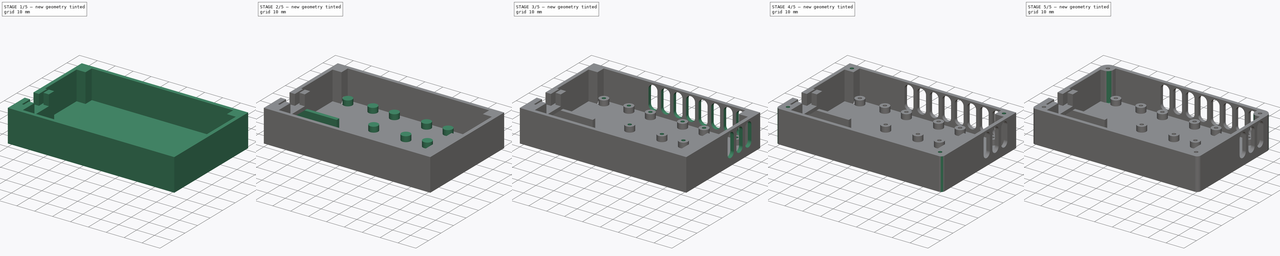
[diagram: build sequence overview — one tinted view per stage of 5, left to right]
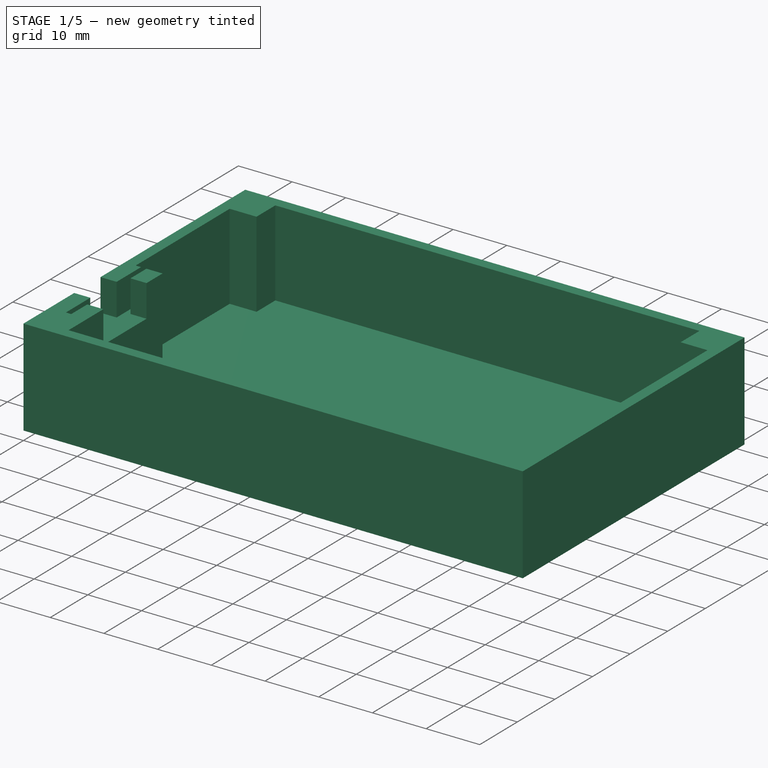
[diagram: stage 1 of 5 — iso view after this stage's code; geometry added in this stage tinted green]
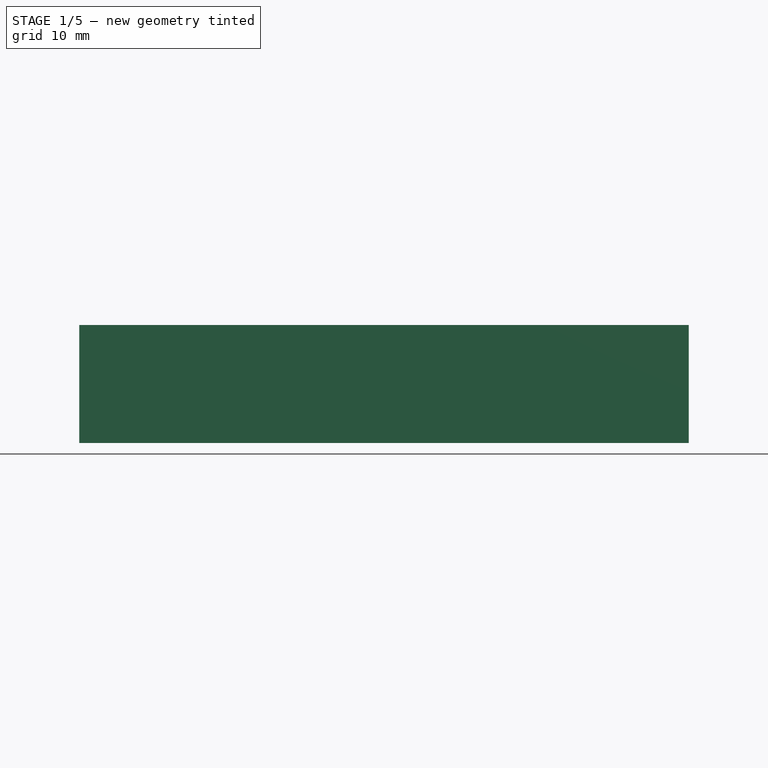
[diagram: stage 1 of 5 — front view after this stage's code; geometry added in this stage tinted green]
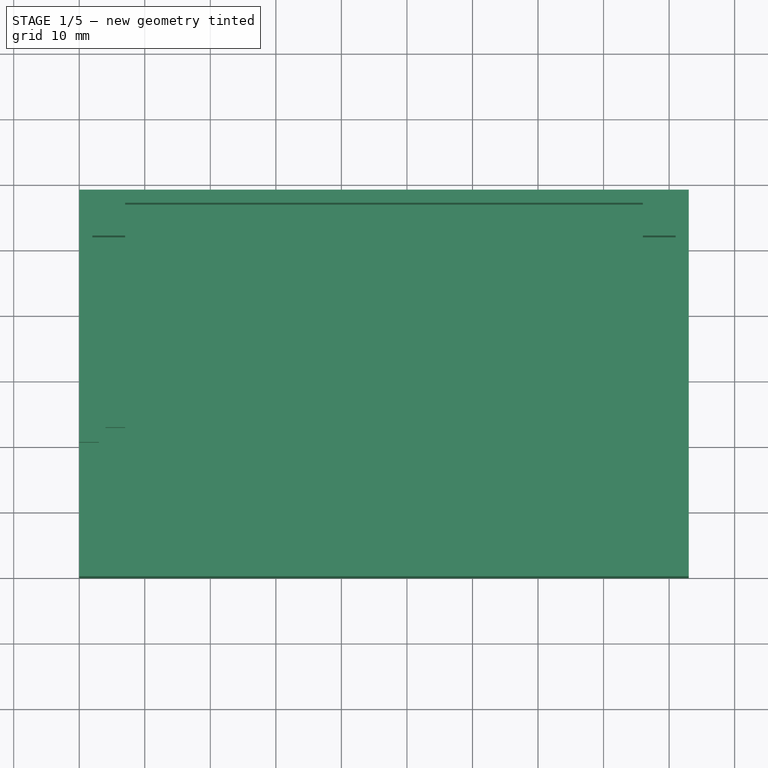
[diagram: stage 1 of 5 — top view after this stage's code; geometry added in this stage tinted green]
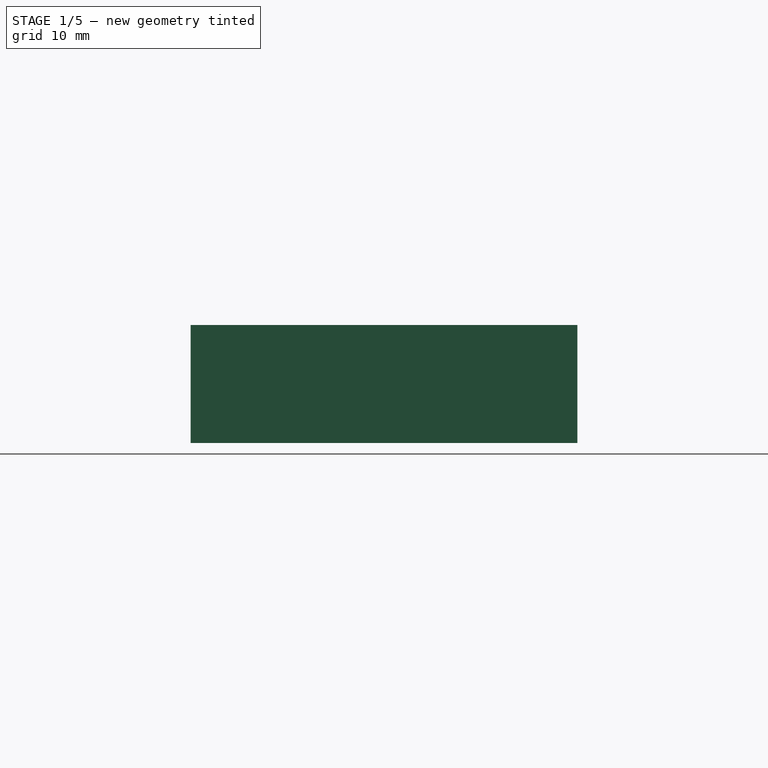
[diagram: stage 1 of 5 — right view after this stage's code; geometry added in this stage tinted green]
FCSTD DOCUMENT  (FreeCAD 1.0R39319 (Git))
Label: box_V1
License: All rights reserved
LicenseURL: https://en.wikipedia.org/wiki/All_rights_reserved
objects: Sketcher::SketchObject×12, PartDesign::Pocket×8, PartDesign::Pad×4, PartDesign::Fillet×4, PartDesign::Body×1
note: 73 computed .brp shape members not serialized (recipe doc carries the construction recipe); baked Part::Feature solids carry a one-line shape summary decoded from their .brp

FEATURE [Sketcher::SketchObject] Sketch
  ArcFitTolerance = 1e-06
  AttachmentSupport = -> [XY_Plane]
  FullyConstrained = true
  MakeInternals = false
  MapMode = 5
  sketch-geometry (5):
    g0: LineSegment StartX=0 StartY=59 StartZ=0 EndX=0 EndY=-7.1e-15 EndZ=0
    g1: LineSegment StartX=0 StartY=-7.1e-15 StartZ=0 EndX=93 EndY=-7.1e-15 EndZ=0
    g2: LineSegment StartX=93 StartY=-7.1e-15 StartZ=0 EndX=93 EndY=59 EndZ=0
    g3: LineSegment StartX=93 StartY=59 StartZ=0 EndX=0 EndY=59 EndZ=0
    g4: GeomPoint X=0 Y=59 Z=0
  constraints (12):
    c: Coincident(g0,g1)
    c: Coincident(g1,g2)
    c: Coincident(g2,g3)
    c: Coincident(g3,g0)
    c: Vertical(g0)
    c: Vertical(g2)
    c: Horizontal(g1)
    c: Horizontal(g3)
    c: Distance(g0,g2) = 93
    c: Distance(g1,g3) = 59
    c: Coincident(g4,g0)
    c: Coincident(g-1,g0)
FEATURE [PartDesign::Pad] Pad
  Direction = (0,0,1)
  Length = 18
  Length2 = 10
  Profile = -> Sketch
  ReferenceAxis = -> Sketch [N_Axis]
  Refine = true
  Suppressed = false
  Type = 0
FEATURE [Sketcher::SketchObject] Sketch001
  ArcFitTolerance = 1e-06
  AttachmentSupport = -> [Pad]
  ExternalGeometry = -> [Pad]
  FullyConstrained = true
  MakeInternals = false
  MapMode = 5
  Placement = pos=(0,0,18) rot=(0,0,1;0rad)
  sketch-geometry (12):
    g0: LineSegment StartX=7 StartY=57 StartZ=0 EndX=86 EndY=57 EndZ=0
    g1: LineSegment StartX=86 StartY=57 StartZ=0 EndX=86 EndY=52 EndZ=0
    g2: LineSegment StartX=86 StartY=52 StartZ=0 EndX=91 EndY=52 EndZ=0
    g3: LineSegment StartX=91 StartY=52 StartZ=0 EndX=91 EndY=27 EndZ=0
    g4: LineSegment StartX=91 StartY=27 StartZ=0 EndX=86 EndY=27 EndZ=0
    g5: LineSegment StartX=86 StartY=27 StartZ=0 EndX=86 EndY=2 EndZ=0
    g6: LineSegment StartX=86 StartY=2 StartZ=0 EndX=7 EndY=2 EndZ=0
    g7: LineSegment StartX=7 StartY=2 StartZ=0 EndX=7 EndY=27 EndZ=0
    g8: LineSegment StartX=7 StartY=27 StartZ=0 EndX=2 EndY=27 EndZ=0
    g9: LineSegment StartX=2 StartY=27 StartZ=0 EndX=2 EndY=52 EndZ=0
    g10: LineSegment StartX=2 StartY=52 StartZ=0 EndX=7 EndY=52 EndZ=0
    g11: LineSegment StartX=7 StartY=52 StartZ=0 EndX=7 EndY=57 EndZ=0
  constraints (36):
    c: Horizontal(g0)
    c: Coincident(g0,g1)
    c: Vertical(g1)
    c: Coincident(g1,g2)
    c: Horizontal(g2)
    c: Coincident(g2,g3)
    c: Vertical(g3)
    c: Coincident(g3,g4)
    c: Horizontal(g4)
    c: Coincident(g4,g5)
    c: Coincident(g7,g8)
    c: Coincident(g8,g9)
    c: Coincident(g9,g10)
    c: Coincident(g10,g11)
    c: Coincident(g11,g0)
    c: Vertical(g11)
    c: Horizontal(g10)
    c: Vertical(g9)
    c: Horizontal(g8)
    c: Vertical(g7)
    c: Horizontal(g6)
    c: Vertical(g5)
    c: Coincident(g5,g6)
    c: Coincident(g6,g7)
    c: Distance(g-1,g6) = 2
    c: Distance(g-2,g9) = 2
    c: Distance(g-3,g3) = 2
    c: Distance(g-4,g0) = 2
    c: Distance(g10,g0) = 5
    c: Distance(g11,g9) = 5
    c: Equal(g11,g1)
    c: Equal(g10,g2)
    c: Equal(g2,g4)
    c: Equal(g10,g8)
    c: Distance(g6,g8) = 25
    c: Equal(g7,g5)
FEATURE [PartDesign::Pocket] Pocket
  BaseFeature = -> Pad
  Direction = (0,0,-1)
  Length = 16
  Length2 = 5
  Profile = -> Sketch001
  ReferenceAxis = -> Sketch001 [N_Axis]
  Refine = true
  Suppressed = false
  Type = 0
FEATURE [Sketcher::SketchObject] Sketch002
  ArcFitTolerance = 1e-06
  AttachmentSupport = -> [Pocket]
  FullyConstrained = true
  MakeInternals = false
  MapMode = 5
  Placement = pos=(0,0,18) rot=(0,0,1;0rad)
  sketch-geometry (12):
    g0: LineSegment StartX=0 StartY=20.5 StartZ=0 EndX=3 EndY=20.5 EndZ=0
    g1: LineSegment StartX=3 StartY=20.5 StartZ=0 EndX=3 EndY=27 EndZ=0
    g2: LineSegment StartX=3 StartY=27 StartZ=0 EndX=4 EndY=27 EndZ=0
    g3: LineSegment StartX=4 StartY=27 StartZ=0 EndX=4 EndY=22.75 EndZ=0
    g4: LineSegment StartX=4 StartY=22.75 StartZ=0 EndX=7 EndY=22.75 EndZ=0
    g5: LineSegment StartX=7 StartY=22.75 StartZ=0 EndX=7 EndY=11.25 EndZ=0
    g6: LineSegment StartX=7 StartY=11.25 StartZ=0 EndX=4 EndY=11.25 EndZ=0
    g7: LineSegment StartX=4 StartY=11.25 StartZ=0 EndX=4 EndY=7 EndZ=0
    g8: LineSegment StartX=4 StartY=7 StartZ=0 EndX=3 EndY=7 EndZ=0
    g9: LineSegment StartX=3 StartY=7 StartZ=0 EndX=3 EndY=13.5 EndZ=0
    g10: LineSegment StartX=3 StartY=13.5 StartZ=0 EndX=0 EndY=13.5 EndZ=0
    g11: LineSegment StartX=0 StartY=13.5 StartZ=0 EndX=0 EndY=20.5 EndZ=0
  constraints (36):
    c: Horizontal(g0)
    c: Coincident(g0,g1)
    c: Vertical(g1)
    c: Coincident(g1,g2)
    c: Coincident(g2,g3)
    c: Vertical(g3)
    c: Coincident(g3,g4)
    c: Coincident(g4,g5)
    c: Vertical(g5)
    c: Coincident(g5,g6)
    c: Horizontal(g6)
    c: Coincident(g6,g7)
    c: Vertical(g7)
    c: Coincident(g7,g8)
    c: Coincident(g8,g9)
    c: Vertical(g9)
    c: Coincident(g9,g10)
    c: Horizontal(g10)
    c: Coincident(g10,g11)
    c: Coincident(g11,g0)
    c: Vertical(g11)
    c: Horizontal(g4)
    c: Horizontal(g2)
    c: Horizontal(g8)
    c: Distance(g8,g2) = 20
    c: Distance(g6,g4) = 11.5
    c: Distance(g5,g9) = 4
    c: Equal(g9,g1)
    c: Equal(g3,g7)
    c: Equal(g4,g6)
    c: Equal(g2,g8)
    c: Distance(g7,g9) = 1
    c: Distance(g10,g0) = 7
    c: Distance(g9,g11) = 3
    c: PointOnObject(g10,g-2)
    c: Distance(g8,g-1) = 7
FEATURE [PartDesign::Pocket] Pocket001
  BaseFeature = -> Pocket
  Direction = (0,0,-1)
  Length = 6
  Length2 = 5
  Profile = -> Sketch002
  ReferenceAxis = -> Sketch002 [N_Axis]
  Refine = true
  Suppressed = false
  Type = 0
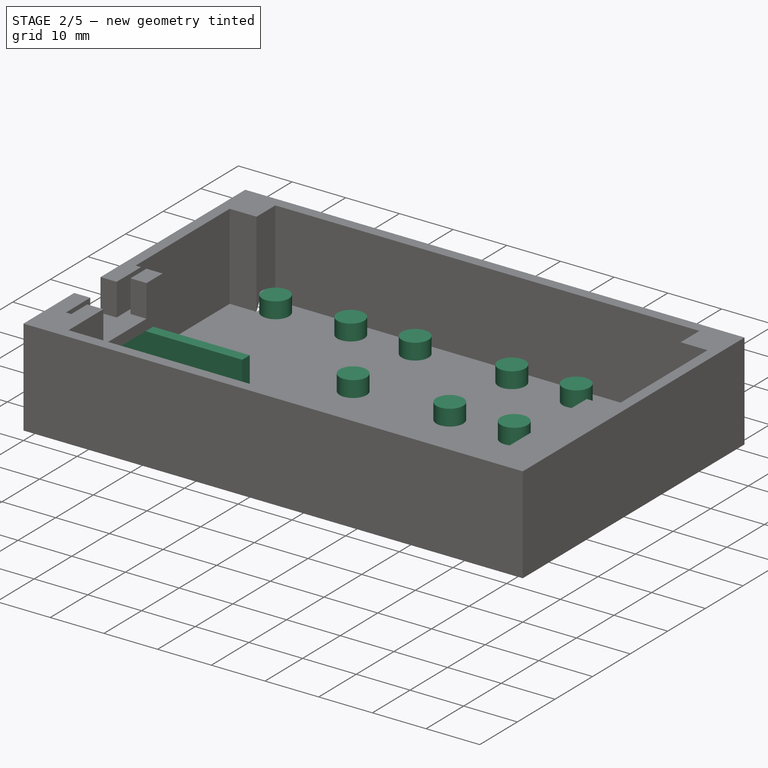
[diagram: stage 2 of 5 — iso view after this stage's code; geometry added in this stage tinted green]
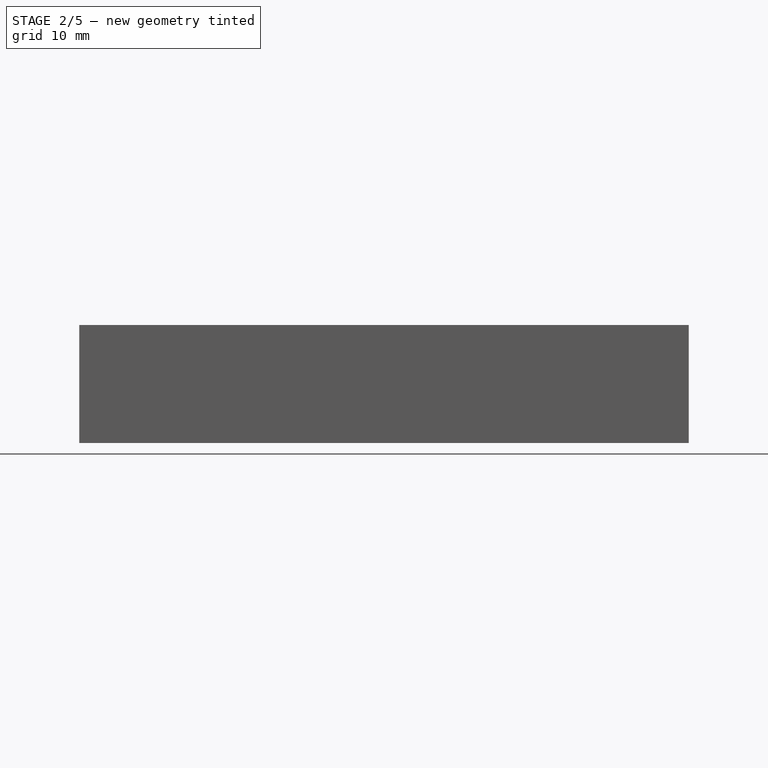
[diagram: stage 2 of 5 — front view after this stage's code; geometry added in this stage tinted green]
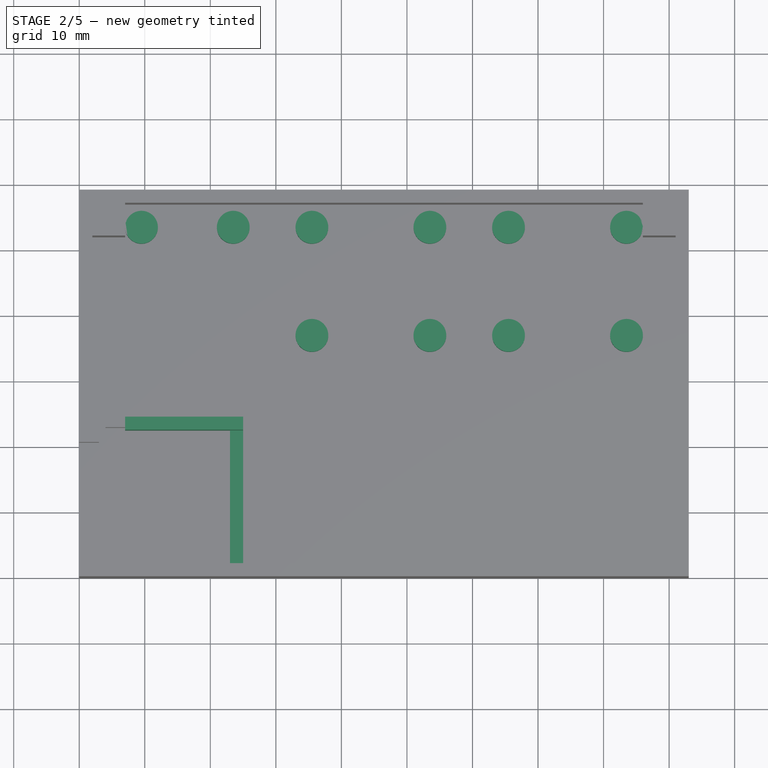
[diagram: stage 2 of 5 — top view after this stage's code; geometry added in this stage tinted green]
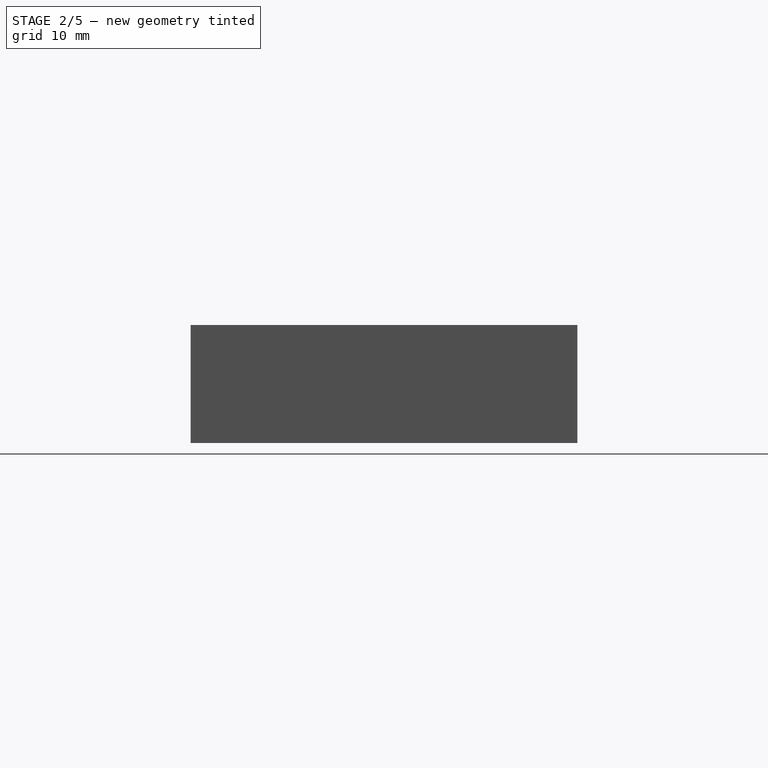
[diagram: stage 2 of 5 — right view after this stage's code; geometry added in this stage tinted green]
FEATURE [Sketcher::SketchObject] Sketch003
  ArcFitTolerance = 1e-06
  AttachmentSupport = -> [Pocket001]
  ExternalGeometry = -> [Pocket001]
  FullyConstrained = true
  MakeInternals = false
  MapMode = 5
  Placement = pos=(7,0,0) rot=(0.57735,0.57735,0.57735;2.0944rad)
  sketch-geometry (4):
    g0: LineSegment StartX=2 StartY=10 StartZ=0 EndX=2 EndY=2 EndZ=0
    g1: LineSegment StartX=2 StartY=2 StartZ=0 EndX=27 EndY=2 EndZ=0
    g2: LineSegment StartX=27 StartY=2 StartZ=0 EndX=27 EndY=10 EndZ=0
    g3: LineSegment StartX=27 StartY=10 StartZ=0 EndX=2 EndY=10 EndZ=0
  constraints (11):
    c: Coincident(g0,g1)
    c: Coincident(g1,g2)
    c: Coincident(g2,g3)
    c: Coincident(g3,g0)
    c: Vertical(g0)
    c: Vertical(g2)
    c: Horizontal(g1)
    c: Horizontal(g3)
    c: Distance(g0,g2) = 25
    c: Distance(g1,g3) = 8
    c: Coincident(g-4,g0)
FEATURE [PartDesign::Pocket] Pocket002
  BaseFeature = -> Pocket001
  Direction = (-1,0,0)
  Length = 5
  Length2 = 5
  Profile = -> Sketch003
  ReferenceAxis = -> Sketch003 [N_Axis]
  Refine = true
  Suppressed = false
  Type = 0
FEATURE [Sketcher::SketchObject] Sketch004
  ArcFitTolerance = 1e-06
  AttachmentSupport = -> [Pocket002]
  ExternalGeometry = -> [Pocket002]
  FullyConstrained = true
  MakeInternals = false
  MapMode = 5
  Placement = pos=(0,0,2) rot=(0,0,1;0rad)
  sketch-geometry (14):
    g0: Circle CenterX=23.5 CenterY=53.5 CenterZ=0 NormalX=0 NormalY=0 NormalZ=1 AngleXU=0 Radius=2.5
    g1: Circle CenterX=35.5 CenterY=53.5 CenterZ=0 NormalX=0 NormalY=0 NormalZ=1 AngleXU=0 Radius=2.5
    g2: Circle CenterX=53.5 CenterY=53.5 CenterZ=0 NormalX=0 NormalY=0 NormalZ=1 AngleXU=0 Radius=2.5
    g3: Circle CenterX=53.5 CenterY=37 CenterZ=0 NormalX=0 NormalY=0 NormalZ=1 AngleXU=0 Radius=2.5
    g4: Circle CenterX=35.5 CenterY=37 CenterZ=0 NormalX=0 NormalY=0 NormalZ=1 AngleXU=0 Radius=2.5
    g5: Circle CenterX=65.5 CenterY=53.5 CenterZ=0 NormalX=0 NormalY=0 NormalZ=1 AngleXU=0 Radius=2.5
    g6: Circle CenterX=83.5 CenterY=53.5 CenterZ=0 NormalX=0 NormalY=0 NormalZ=1 AngleXU=0 Radius=2.5
    g7: Circle CenterX=83.5 CenterY=37 CenterZ=0 NormalX=0 NormalY=0 NormalZ=1 AngleXU=0 Radius=2.5
    g8: Circle CenterX=65.5 CenterY=37 CenterZ=0 NormalX=0 NormalY=0 NormalZ=1 AngleXU=0 Radius=2.5
    g9: Circle CenterX=9.5 CenterY=53.5 CenterZ=0 NormalX=0 NormalY=0 NormalZ=1 AngleXU=0 Radius=2.5
    g10: LineSegment StartX=23 StartY=22.5 StartZ=0 EndX=23 EndY=2 EndZ=0
    g11: LineSegment StartX=23 StartY=2 StartZ=0 EndX=25 EndY=2 EndZ=0
    g12: LineSegment StartX=25 StartY=2 StartZ=0 EndX=25 EndY=22.5 EndZ=0
    g13: LineSegment StartX=25 StartY=22.5 StartZ=0 EndX=23 EndY=22.5 EndZ=0
  constraints (42):
    c: Diameter(g0) = 5
    c: Diameter(g1) = 5
    c: Diameter(g2) = 5
    c: Diameter(g3) = 5
    c: Diameter(g4) = 5
    c: Diameter(g5) = 5
    c: Diameter(g6) = 5
    c: Diameter(g7) = 5
    c: Diameter(g8) = 5
    c: Diameter(g9) = 5
    c: Coincident(g10,g11)
    c: Coincident(g11,g12)
    c: Coincident(g12,g13)
    c: Coincident(g13,g10)
    c: Vertical(g10)
    c: Vertical(g12)
    c: Horizontal(g11)
    c: Horizontal(g13)
    c: Distance(g10,g12) = 2
    c: Distance(g11,g13) = 20.5
    c: Distance(g-1,g11) = 2
    c: Distance(g-2,g10) = 23
    c: Distance(g9,g-2) = 9.5
    c: Distance(g9,g-5) = 5.5
    c: Distance(g0,g-5) = 5.5
    c: Distance(g1,g-5) = 5.5
    c: Distance(g2,g-5) = 5.5
    c: Distance(g5,g-5) = 5.5
    c: Distance(g6,g-5) = 5.5
    c: DistanceX(g9,g0) = 14
    c: DistanceY(g4,g1) = 16.5
    c: DistanceY(g3,g2) = 16.5
    c: DistanceY(g8,g5) = 16.5
    c: DistanceY(g7,g6) = 16.5
    c: DistanceX(g1,g2) = 18
    c: DistanceX(g4,g3) = 18
    c: DistanceX(g1,g4) = 0
    c: DistanceX(g5,g6) = 18
    c: DistanceX(g5,g8) = 0
    c: DistanceX(g8,g7) = 18
    c: DistanceX(g2,g5) = 12
    c: DistanceX(g6,g-5) = 9.5
FEATURE [PartDesign::Pad] Pad001
  BaseFeature = -> Pocket002
  Direction = (0,0,1)
  Length = 3
  Length2 = 10
  Profile = -> Sketch004
  ReferenceAxis = -> Sketch004 [N_Axis]
  Refine = true
  Suppressed = false
  Type = 0
FEATURE [Sketcher::SketchObject] Sketch005
  ArcFitTolerance = 1e-06
  AttachmentSupport = -> [Pad001]
  FullyConstrained = true
  MakeInternals = false
  MapMode = 5
  Placement = pos=(0,0,2) rot=(0,0,1;0rad)
  sketch-geometry (4):
    g0: LineSegment StartX=2 StartY=24.5 StartZ=0 EndX=2 EndY=22.5 EndZ=0
    g1: LineSegment StartX=2 StartY=22.5 StartZ=0 EndX=25 EndY=22.5 EndZ=0
    g2: LineSegment StartX=25 StartY=22.5 StartZ=0 EndX=25 EndY=24.5 EndZ=0
    g3: LineSegment StartX=25 StartY=24.5 StartZ=0 EndX=2 EndY=24.5 EndZ=0
  constraints (12):
    c: Coincident(g0,g1)
    c: Coincident(g1,g2)
    c: Coincident(g2,g3)
    c: Coincident(g3,g0)
    c: Vertical(g0)
    c: Vertical(g2)
    c: Horizontal(g1)
    c: Horizontal(g3)
    c: Distance(g0,g2) = 23
    c: Distance(g1,g3) = 2
    c: Distance(g-1,g1) = 22.5
    c: Distance(g0,g-2) = 2
FEATURE [PartDesign::Pad] Pad002
  BaseFeature = -> Pad001
  Direction = (0,0,1)
  Length = 8
  Length2 = 10
  Profile = -> Sketch005
  ReferenceAxis = -> Sketch005 [N_Axis]
  Refine = true
  Suppressed = false
  Type = 0
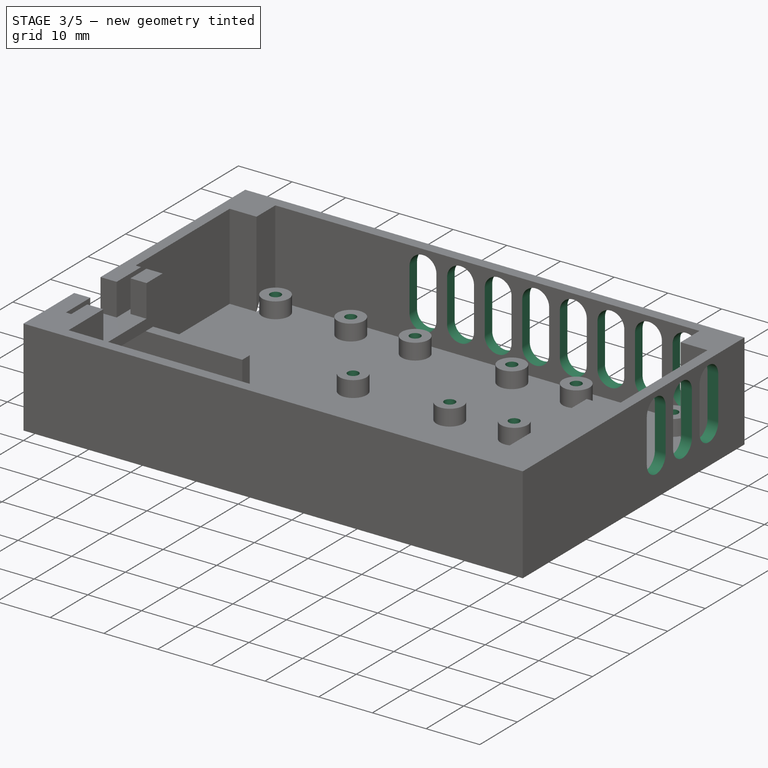
[diagram: stage 3 of 5 — iso view after this stage's code; geometry added in this stage tinted green]
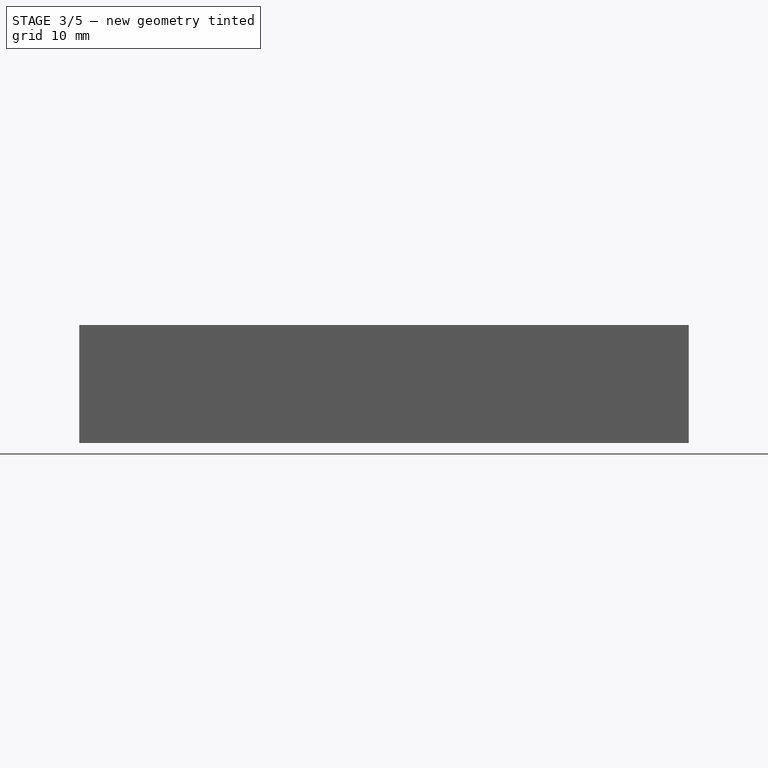
[diagram: stage 3 of 5 — front view after this stage's code; geometry added in this stage tinted green]
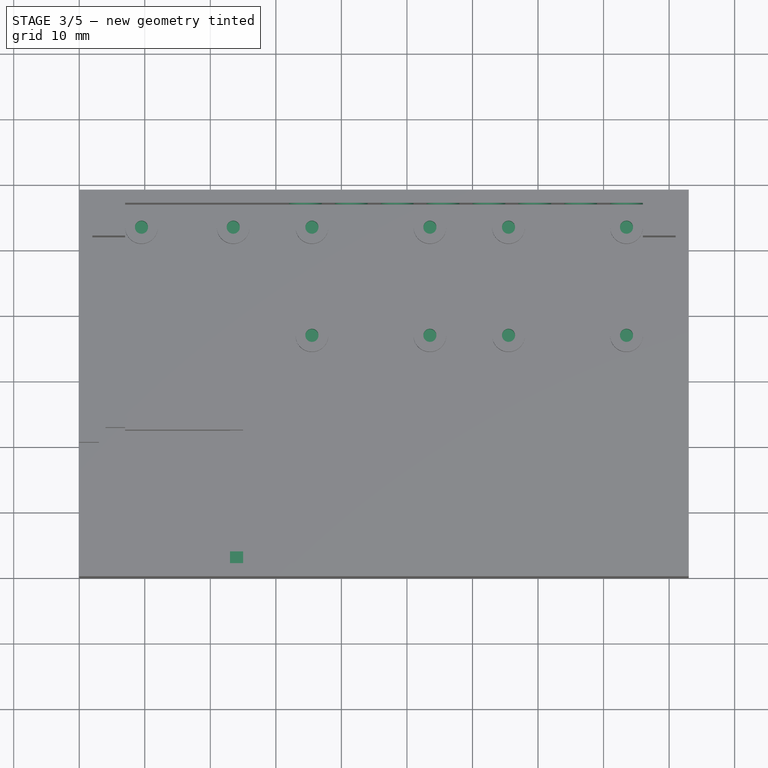
[diagram: stage 3 of 5 — top view after this stage's code; geometry added in this stage tinted green]
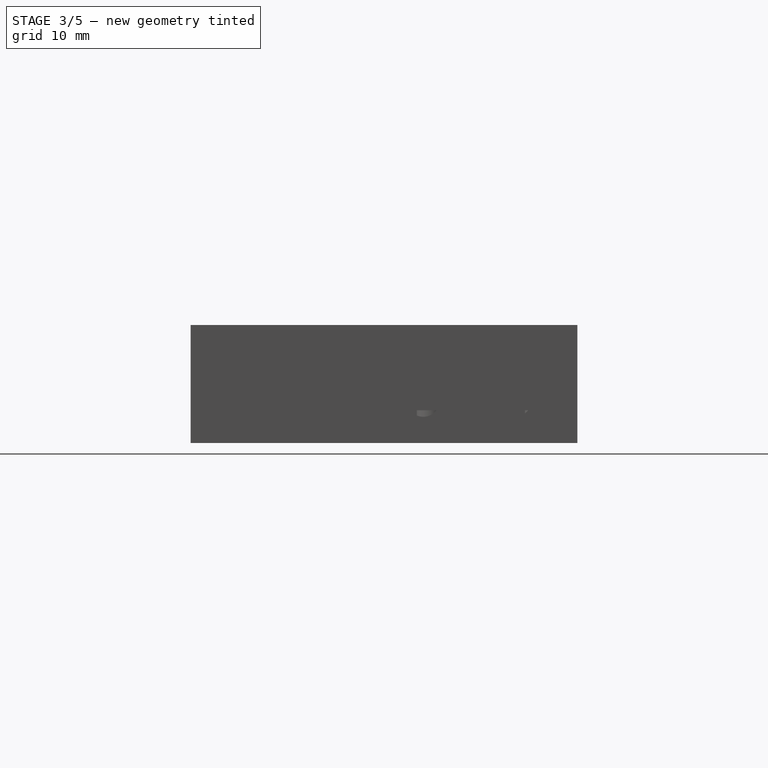
[diagram: stage 3 of 5 — right view after this stage's code; geometry added in this stage tinted green]
FEATURE [Sketcher::SketchObject] Sketch006
  ArcFitTolerance = 1e-06
  AttachmentSupport = -> [Pad002]
  ExternalGeometry = -> [Pad002]
  FullyConstrained = true
  MakeInternals = false
  MapMode = 5
  Placement = pos=(0,0,5) rot=(0,0,1;0rad)
  sketch-geometry (4):
    g0: LineSegment StartX=23 StartY=4 StartZ=0 EndX=23 EndY=2 EndZ=0
    g1: LineSegment StartX=23 StartY=2 StartZ=0 EndX=25 EndY=2 EndZ=0
    g2: LineSegment StartX=25 StartY=2 StartZ=0 EndX=25 EndY=4 EndZ=0
    g3: LineSegment StartX=25 StartY=4 StartZ=0 EndX=23 EndY=4 EndZ=0
  constraints (12):
    c: Coincident(g0,g1)
    c: Coincident(g1,g2)
    c: Coincident(g2,g3)
    c: Coincident(g3,g0)
    c: Vertical(g0)
    c: Vertical(g2)
    c: Horizontal(g1)
    c: Horizontal(g3)
    c: Distance(g0,g2) = 2
    c: Distance(g1,g3) = 2
    c: Distance(g-1,g1) = 2
    c: Distance(g-2,g0) = 23
FEATURE [PartDesign::Pad] Pad003
  BaseFeature = -> Pad002
  Direction = (0,0,1)
  Length = 2
  Length2 = 10
  Profile = -> Sketch006
  ReferenceAxis = -> Sketch006 [N_Axis]
  Refine = true
  Suppressed = false
  Type = 0
FEATURE [Sketcher::SketchObject] Sketch007
  ArcFitTolerance = 1e-06
  AttachmentSupport = -> [Pad003]
  ExternalGeometry = -> [Pad003]
  FullyConstrained = true
  MakeInternals = false
  MapMode = 5
  Placement = pos=(0,0,5) rot=(0,0,1;0rad)
  sketch-geometry (10):
    g0: Circle CenterX=23.5 CenterY=53.5 CenterZ=0 NormalX=0 NormalY=0 NormalZ=1 AngleXU=0 Radius=1
    g1: Circle CenterX=35.5 CenterY=53.5 CenterZ=0 NormalX=0 NormalY=0 NormalZ=1 AngleXU=0 Radius=1
    g2: Circle CenterX=9.5 CenterY=53.5 CenterZ=0 NormalX=0 NormalY=0 NormalZ=1 AngleXU=0 Radius=1
    g3: Circle CenterX=53.5 CenterY=53.5 CenterZ=0 NormalX=0 NormalY=0 NormalZ=1 AngleXU=0 Radius=1
    g4: Circle CenterX=65.5 CenterY=53.5 CenterZ=0 NormalX=0 NormalY=0 NormalZ=1 AngleXU=0 Radius=1
    g5: Circle CenterX=83.5 CenterY=53.5 CenterZ=0 NormalX=0 NormalY=0 NormalZ=1 AngleXU=0 Radius=1
    g6: Circle CenterX=35.5 CenterY=37 CenterZ=0 NormalX=0 NormalY=0 NormalZ=1 AngleXU=0 Radius=1
    g7: Circle CenterX=53.5 CenterY=37 CenterZ=0 NormalX=0 NormalY=0 NormalZ=1 AngleXU=0 Radius=1
    g8: Circle CenterX=65.5 CenterY=37 CenterZ=0 NormalX=0 NormalY=0 NormalZ=1 AngleXU=0 Radius=1
    g9: Circle CenterX=83.5 CenterY=37 CenterZ=0 NormalX=0 NormalY=0 NormalZ=1 AngleXU=0 Radius=1
  constraints (20):
    c: Diameter(g0) = 2
    c: Diameter(g1) = 2
    c: Diameter(g2) = 2
    c: Diameter(g3) = 2
    c: Diameter(g4) = 2
    c: Diameter(g5) = 2
    c: Diameter(g6) = 2
    c: Diameter(g7) = 2
    c: Diameter(g8) = 2
    c: Diameter(g9) = 2
    c: Coincident(g2,g-3)
    c: Coincident(g0,g-4)
    c: Coincident(g1,g-5)
    c: Coincident(g3,g-8)
    c: Coincident(g-9,g4)
    c: Coincident(g5,g-12)
    c: Coincident(g-11,g9)
    c: Coincident(g8,g-10)
    c: Coincident(g7,g-7)
    c: Coincident(g6,g-6)
FEATURE [PartDesign::Pocket] Pocket003
  BaseFeature = -> Pad003
  Direction = (0,0,-1)
  Length = 4
  Length2 = 5
  Profile = -> Sketch007
  ReferenceAxis = -> Sketch007 [N_Axis]
  Refine = true
  Suppressed = false
  Type = 0
FEATURE [Sketcher::SketchObject] Sketch008
  ArcFitTolerance = 1e-06
  AttachmentSupport = -> [Pocket003]
  ExternalGeometry = -> [Pocket003]
  FullyConstrained = true
  MakeInternals = false
  MapMode = 5
  Placement = pos=(0,59,0) rot=(0,0.707107,0.707107;3.14159rad)
  sketch-geometry (32):
    g0: ArcOfCircle CenterX=-76.5 CenterY=6.5 CenterZ=0 NormalX=0 NormalY=0 NormalZ=1 AngleXU=0 Radius=2.5 StartAngle=3.14159 EndAngle=6.28319
    g1: ArcOfCircle CenterX=-76.5 CenterY=14.5 CenterZ=0 NormalX=0 NormalY=0 NormalZ=1 AngleXU=0 Radius=2.5 StartAngle=2e-16 EndAngle=3.14159
    g2: LineSegment StartX=-79 StartY=6.5 StartZ=0 EndX=-79 EndY=14.5 EndZ=0
    g3: LineSegment StartX=-74 StartY=6.5 StartZ=0 EndX=-74 EndY=14.5 EndZ=0
    g4: ArcOfCircle CenterX=-69.5 CenterY=6.5 CenterZ=0 NormalX=0 NormalY=0 NormalZ=1 AngleXU=0 Radius=2.5 StartAngle=3.14159 EndAngle=6.28319
    g5: ArcOfCircle CenterX=-69.5 CenterY=14.5 CenterZ=0 NormalX=0 NormalY=0 NormalZ=1 AngleXU=0 Radius=2.5 StartAngle=1e-16 EndAngle=3.14159
    g6: LineSegment StartX=-72 StartY=6.5 StartZ=0 EndX=-72 EndY=14.5 EndZ=0
    g7: LineSegment StartX=-67 StartY=6.5 StartZ=0 EndX=-67 EndY=14.5 EndZ=0
    g8: ArcOfCircle CenterX=-62.5 CenterY=6.5 CenterZ=0 NormalX=0 NormalY=0 NormalZ=1 AngleXU=0 Radius=2.5 StartAngle=3.14159 EndAngle=6.28319
    g9: ArcOfCircle CenterX=-62.5 CenterY=14.5 CenterZ=0 NormalX=0 NormalY=0 NormalZ=1 AngleXU=0 Radius=2.5 StartAngle=3e-16 EndAngle=3.14159
    g10: LineSegment StartX=-65 StartY=6.5 StartZ=0 EndX=-65 EndY=14.5 EndZ=0
    g11: LineSegment StartX=-60 StartY=6.5 StartZ=0 EndX=-60 EndY=14.5 EndZ=0
    g12: ArcOfCircle CenterX=-55.5 CenterY=6.5 CenterZ=0 NormalX=0 NormalY=0 NormalZ=1 AngleXU=0 Radius=2.5 StartAngle=3.14159 EndAngle=6.28319
    g13: ArcOfCircle CenterX=-55.5 CenterY=14.5 CenterZ=0 NormalX=0 NormalY=0 NormalZ=1 AngleXU=0 Radius=2.5 StartAngle=0 EndAngle=3.14159
    g14: LineSegment StartX=-58 StartY=6.5 StartZ=0 EndX=-58 EndY=14.5 EndZ=0
    g15: LineSegment StartX=-53 StartY=6.5 StartZ=0 EndX=-53 EndY=14.5 EndZ=0
    g16: ArcOfCircle CenterX=-48.5 CenterY=6.5 CenterZ=0 NormalX=0 NormalY=0 NormalZ=1 AngleXU=0 Radius=2.5 StartAngle=3.14159 EndAngle=6.28319
    g17: ArcOfCircle CenterX=-48.5 CenterY=14.5 CenterZ=0 NormalX=0 NormalY=0 NormalZ=1 AngleXU=0 Radius=2.5 StartAngle=2e-16 EndAngle=3.14159
    g18: LineSegment StartX=-51 StartY=6.5 StartZ=0 EndX=-51 EndY=14.5 EndZ=0
    g19: LineSegment StartX=-46 StartY=6.5 StartZ=0 EndX=-46 EndY=14.5 EndZ=0
    g20: ArcOfCircle CenterX=-41.5 CenterY=6.5 CenterZ=0 NormalX=0 NormalY=0 NormalZ=1 AngleXU=0 Radius=2.5 StartAngle=3.14159 EndAngle=6.28319
    g21: ArcOfCircle CenterX=-41.5 CenterY=14.5 CenterZ=0 NormalX=0 NormalY=0 NormalZ=1 AngleXU=0 Radius=2.5 StartAngle=1.02e-13 EndAngle=3.14159
    g22: LineSegment StartX=-44 StartY=6.5 StartZ=0 EndX=-44 EndY=14.5 EndZ=0
    g23: LineSegment StartX=-39 StartY=6.5 StartZ=0 EndX=-39 EndY=14.5 EndZ=0
    g24: ArcOfCircle CenterX=-34.5 CenterY=6.5 CenterZ=0 NormalX=0 NormalY=0 NormalZ=1 AngleXU=0 Radius=2.5 StartAngle=3.14159 EndAngle=6.28319
    g25: ArcOfCircle CenterX=-34.5 CenterY=14.5 CenterZ=0 NormalX=0 NormalY=0 NormalZ=1 AngleXU=0 Radius=2.5 StartAngle=-2.04e-14 EndAngle=3.14159
    g26: LineSegment StartX=-37 StartY=6.5 StartZ=0 EndX=-37 EndY=14.5 EndZ=0
    g27: LineSegment StartX=-32 StartY=6.5 StartZ=0 EndX=-32 EndY=14.5 EndZ=0
    g28: ArcOfCircle CenterX=-83.5 CenterY=6.5 CenterZ=0 NormalX=0 NormalY=0 NormalZ=1 AngleXU=0 Radius=2.5 StartAngle=3.14159 EndAngle=6.28319
    g29: ArcOfCircle CenterX=-83.5 CenterY=14.5 CenterZ=0 NormalX=0 NormalY=0 NormalZ=1 AngleXU=0 Radius=2.5 StartAngle=0 EndAngle=3.14159
    g30: LineSegment StartX=-86 StartY=6.5 StartZ=0 EndX=-86 EndY=14.5 EndZ=0
    g31: LineSegment StartX=-81 StartY=6.5 StartZ=0 EndX=-81 EndY=14.5 EndZ=0
  constraints (80):
    c: Tangent(g0,g2) = 1.5708
    c: Tangent(g0,g3) = -1.5708
    c: Tangent(g1,g2) = 1.5708
    c: Tangent(g1,g3) = -1.5708
    c: Equal(g0,g1)
    c: Vertical(g3)
    c: Distance(g0,g1) = 8
    c: Radius(g0) = 2.5
    c: Distance(g0,g-1) = 6.5
    c: Tangent(g4,g6) = 1.5708
    c: Tangent(g4,g7) = -1.5708
    c: Tangent(g5,g6) = 1.5708
    c: Tangent(g5,g7) = -1.5708
    c: Equal(g4,g5)
    c: Vertical(g7)
    c: Distance(g4,g5) = 8
    c: Radius(g4) = 2.5
    c: Distance(g4,g-1) = 6.5
    c: Tangent(g8,g10) = 1.5708
    c: Tangent(g8,g11) = -1.5708
    c: Tangent(g9,g10) = 1.5708
    c: Tangent(g9,g11) = -1.5708
    c: Equal(g8,g9)
    c: Vertical(g11)
    c: Distance(g8,g9) = 8
    c: Radius(g8) = 2.5
    c: Distance(g8,g-1) = 6.5
    c: Tangent(g12,g14) = 1.5708
    c: Tangent(g12,g15) = -1.5708
    c: Tangent(g13,g14) = 1.5708
    c: Tangent(g13,g15) = -1.5708
    c: Equal(g12,g13)
    c: Vertical(g15)
    c: Distance(g12,g13) = 8
    c: Radius(g12) = 2.5
    c: Distance(g12,g-1) = 6.5
    c: Tangent(g16,g18) = 1.5708
    c: Tangent(g16,g19) = -1.5708
    c: Tangent(g17,g18) = 1.5708
    c: Tangent(g17,g19) = -1.5708
    c: Equal(g16,g17)
    c: Vertical(g19)
    c: Distance(g16,g17) = 8
    c: Radius(g16) = 2.5
    c: Distance(g16,g-1) = 6.5
    c: Tangent(g20,g22) = 1.5708
    c: Tangent(g20,g23) = -1.5708
    c: Tangent(g21,g22) = 1.5708
    c: Tangent(g21,g23) = -1.5708
    c: Equal(g20,g21)
    c: Vertical(g23)
    c: Distance(g20,g21) = 8
    c: Radius(g20) = 2.5
    c: Distance(g20,g-1) = 6.5
    c: Tangent(g24,g26) = 1.5708
    c: Tangent(g24,g27) = -1.5708
    c: Tangent(g25,g26) = 1.5708
    c: Tangent(g25,g27) = -1.5708
    c: Equal(g24,g25)
    c: Vertical(g27)
    c: Distance(g24,g25) = 8
    c: Radius(g24) = 2.5
    c: Distance(g24,g-1) = 6.5
    c: Tangent(g28,g30) = 1.5708
    c: Tangent(g28,g31) = -1.5708
    c: Tangent(g29,g30) = 1.5708
    c: Tangent(g29,g31) = -1.5708
    c: Equal(g28,g29)
    c: Vertical(g31)
    c: Distance(g28,g29) = 8
    c: Radius(g28) = 2.5
    c: Distance(g28,g-1) = 6.5
    c: Distance(g28,g-3) = 9.5
    c: DistanceX(g29,g1) = 7
    c: DistanceX(g1,g5) = 7
    c: DistanceX(g5,g9) = 7
    c: DistanceX(g9,g13) = 7
    c: DistanceX(g13,g17) = 7
    c: DistanceX(g17,g21) = 7
    c: DistanceX(g21,g25) = 7
FEATURE [PartDesign::Pocket] Pocket004
  BaseFeature = -> Pocket003
  Direction = (0,-1,2e-16)
  Length = 2
  Length2 = 5
  Profile = -> Sketch008
  ReferenceAxis = -> Sketch008 [N_Axis]
  Refine = true
  Suppressed = false
  Type = 0
FEATURE [Sketcher::SketchObject] Sketch009
  ArcFitTolerance = 1e-06
  AttachmentSupport = -> [Pocket004]
  ExternalGeometry = -> [Pocket004]
  FullyConstrained = true
  MakeInternals = false
  MapMode = 5
  Placement = pos=(93,0,0) rot=(0.57735,0.57735,0.57735;2.0944rad)
  sketch-geometry (12):
    g0: ArcOfCircle CenterX=42.5 CenterY=6.5 CenterZ=0 NormalX=0 NormalY=0 NormalZ=1 AngleXU=0 Radius=2.5 StartAngle=3.14159 EndAngle=6.28319
    g1: ArcOfCircle CenterX=42.5 CenterY=14.5 CenterZ=0 NormalX=0 NormalY=0 NormalZ=1 AngleXU=0 Radius=2.5 StartAngle=0 EndAngle=3.14159
    g2: LineSegment StartX=40 StartY=6.5 StartZ=0 EndX=40 EndY=14.5 EndZ=0
    g3: LineSegment StartX=45 StartY=6.5 StartZ=0 EndX=45 EndY=14.5 EndZ=0
    g4: ArcOfCircle CenterX=35.5 CenterY=6.5 CenterZ=0 NormalX=0 NormalY=0 NormalZ=1 AngleXU=0 Radius=2.5 StartAngle=3.14159 EndAngle=6.28319
    g5: ArcOfCircle CenterX=35.5 CenterY=14.5 CenterZ=0 NormalX=0 NormalY=0 NormalZ=1 AngleXU=0 Radius=2.5 StartAngle=8e-16 EndAngle=3.14159
    g6: LineSegment StartX=33 StartY=6.5 StartZ=0 EndX=33 EndY=14.5 EndZ=0
    g7: LineSegment StartX=38 StartY=6.5 StartZ=0 EndX=38 EndY=14.5 EndZ=0
    g8: ArcOfCircle CenterX=49.5 CenterY=6.5 CenterZ=0 NormalX=0 NormalY=0 NormalZ=1 AngleXU=0 Radius=2.5 StartAngle=3.14159 EndAngle=6.28319
    g9: ArcOfCircle CenterX=49.5 CenterY=14.5 CenterZ=0 NormalX=0 NormalY=0 NormalZ=1 AngleXU=0 Radius=2.5 StartAngle=2e-16 EndAngle=3.14159
    g10: LineSegment StartX=47 StartY=6.5 StartZ=0 EndX=47 EndY=14.5 EndZ=0
    g11: LineSegment StartX=52 StartY=6.5 StartZ=0 EndX=52 EndY=14.5 EndZ=0
  constraints (30):
    c: Tangent(g0,g2) = 1.5708
    c: Tangent(g0,g3) = -1.5708
    c: Tangent(g1,g2) = 1.5708
    c: Tangent(g1,g3) = -1.5708
    c: Equal(g0,g1)
    c: Vertical(g3)
    c: Distance(g0,g1) = 8
    c: Radius(g0) = 2.5
    c: DistanceY(g-1,g0) = 6.5
    c: Tangent(g4,g6) = 1.5708
    c: Tangent(g4,g7) = -1.5708
    c: Tangent(g5,g6) = 1.5708
    c: Tangent(g5,g7) = -1.5708
    c: Equal(g4,g5)
    c: Vertical(g7)
    c: Distance(g4,g5) = 8
    c: Radius(g4) = 2.5
    c: DistanceY(g-1,g4) = 6.5
    c: Tangent(g8,g10) = 1.5708
    c: Tangent(g8,g11) = -1.5708
    c: Tangent(g9,g10) = 1.5708
    c: Tangent(g9,g11) = -1.5708
    c: Equal(g8,g9)
    c: Vertical(g11)
    c: Distance(g8,g9) = 8
    c: Radius(g8) = 2.5
    c: DistanceY(g-1,g8) = 6.5
    c: Distance(g9,g-3) = 9.5
    c: DistanceX(g1,g9) = 7
    c: DistanceX(g5,g1) = 7
FEATURE [PartDesign::Pocket] Pocket005
  BaseFeature = -> Pocket004
  Direction = (-1,0,0)
  Length = 2
  Length2 = 5
  Profile = -> Sketch009
  ReferenceAxis = -> Sketch009 [N_Axis]
  Refine = true
  Suppressed = false
  Type = 0
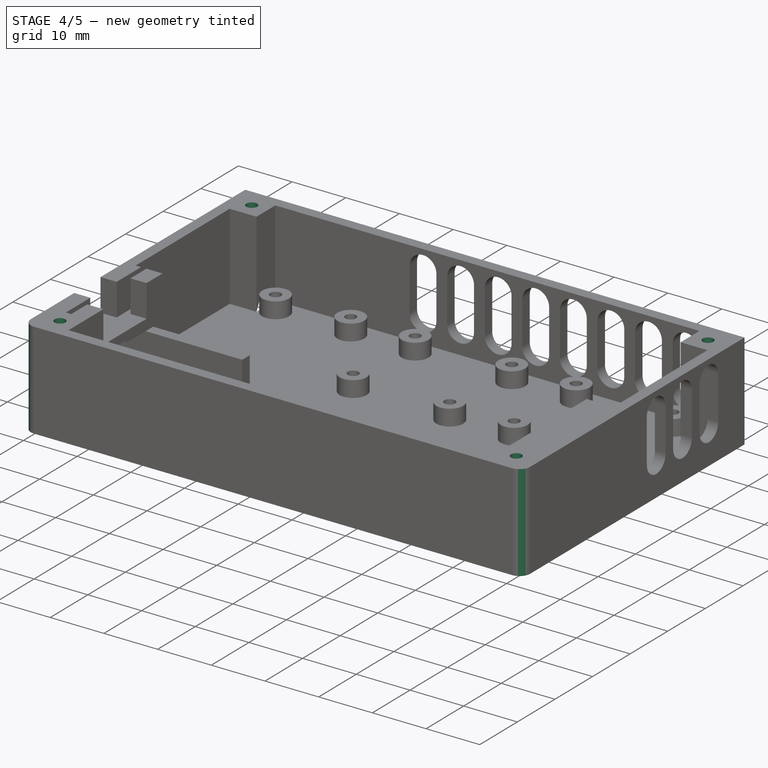
[diagram: stage 4 of 5 — iso view after this stage's code; geometry added in this stage tinted green]
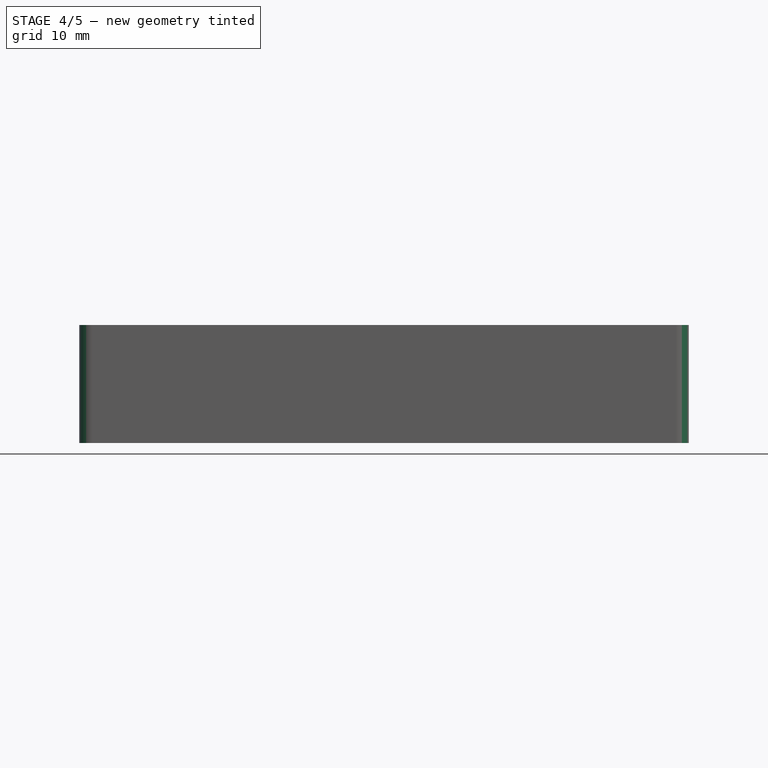
[diagram: stage 4 of 5 — front view after this stage's code; geometry added in this stage tinted green]
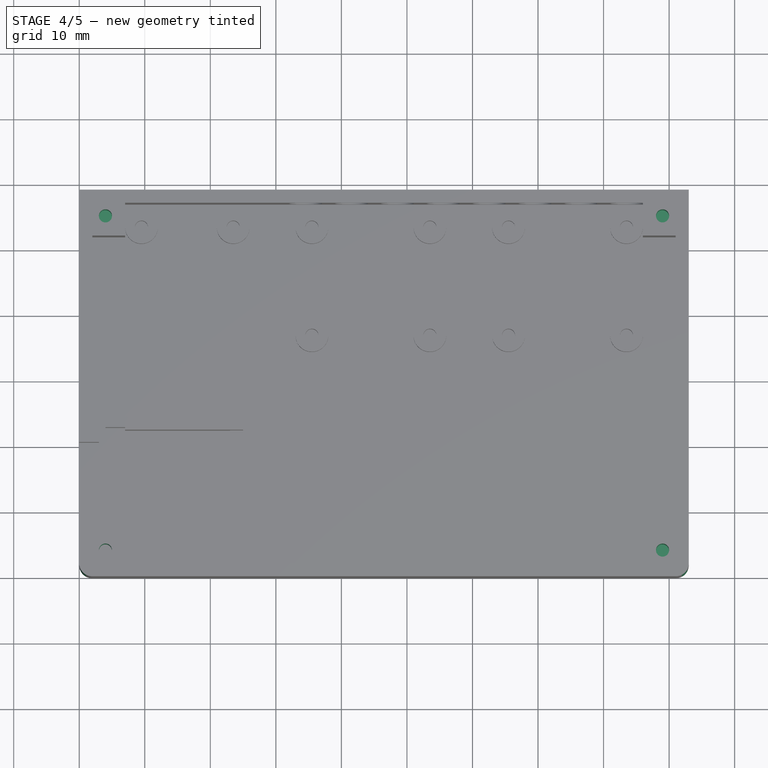
[diagram: stage 4 of 5 — top view after this stage's code; geometry added in this stage tinted green]
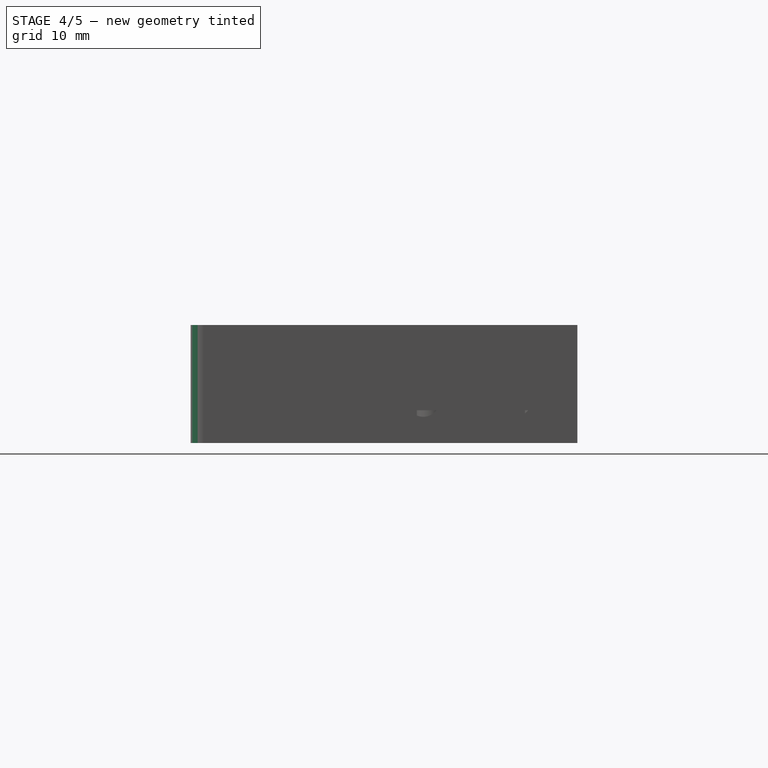
[diagram: stage 4 of 5 — right view after this stage's code; geometry added in this stage tinted green]
FEATURE [Sketcher::SketchObject] Sketch010
  ArcFitTolerance = 1e-06
  AttachmentSupport = -> [Pocket005]
  ExternalGeometry = -> [Pocket005]
  FullyConstrained = true
  MakeInternals = false
  MapMode = 5
  Placement = pos=(0,0,18) rot=(0,0,1;0rad)
  sketch-geometry (4):
    g0: Circle CenterX=4 CenterY=55 CenterZ=0 NormalX=0 NormalY=0 NormalZ=1 AngleXU=0 Radius=1
    g1: Circle CenterX=4 CenterY=4 CenterZ=0 NormalX=0 NormalY=0 NormalZ=1 AngleXU=0 Radius=1
    g2: Circle CenterX=89 CenterY=4 CenterZ=0 NormalX=0 NormalY=0 NormalZ=1 AngleXU=0 Radius=1
    g3: Circle CenterX=89 CenterY=55 CenterZ=0 NormalX=0 NormalY=0 NormalZ=1 AngleXU=0 Radius=1
  constraints (12):
    c: Diameter(g0) = 2
    c: Diameter(g1) = 2
    c: Diameter(g2) = 2
    c: Diameter(g3) = 2
    c: Distance(g0,g-3) = 4
    c: Distance(g0,g-2) = 4
    c: Distance(g3,g-4) = 4
    c: Distance(g3,g-3) = 4
    c: Distance(g2,g-4) = 4
    c: Distance(g2,g-1) = 4
    c: Distance(g1,g-1) = 4
    c: Distance(g1,g-2) = 4
FEATURE [PartDesign::Pocket] Pocket006
  BaseFeature = -> Pocket005
  Direction = (0,0,-1)
  Length = 8
  Length2 = 5
  Profile = -> Sketch010
  ReferenceAxis = -> Sketch010 [N_Axis]
  Refine = true
  Suppressed = false
  Type = 0
FEATURE [Sketcher::SketchObject] Sketch011
  ArcFitTolerance = 1e-06
  AttachmentSupport = -> [Pocket006]
  FullyConstrained = true
  MakeInternals = false
  MapMode = 5
  Placement = pos=(0,0,0) rot=(0.57735,-0.57735,-0.57735;2.0944rad)
  sketch-geometry (4):
    g0: LineSegment StartX=-17.25 StartY=10.5 StartZ=0 EndX=-17.25 EndY=6.5 EndZ=0
    g1: LineSegment StartX=-17.25 StartY=6.5 StartZ=0 EndX=-7.25 EndY=6.5 EndZ=0
    g2: LineSegment StartX=-7.25 StartY=6.5 StartZ=0 EndX=-7.25 EndY=10.5 EndZ=0
    g3: LineSegment StartX=-7.25 StartY=10.5 StartZ=0 EndX=-17.25 EndY=10.5 EndZ=0
  constraints (12):
    c: Coincident(g0,g1)
    c: Coincident(g1,g2)
    c: Coincident(g2,g3)
    c: Coincident(g3,g0)
    c: Vertical(g0)
    c: Vertical(g2)
    c: Horizontal(g1)
    c: Horizontal(g3)
    c: Distance(g0,g2) = 10
    c: Distance(g1,g3) = 4
    c: Distance(g-1,g1) = 6.5
    c: Distance(g-2,g2) = 7.25
FEATURE [PartDesign::Pocket] Pocket007
  BaseFeature = -> Pocket006
  Direction = (1,0,0)
  Length = 7
  Length2 = 5
  Profile = -> Sketch011
  ReferenceAxis = -> Sketch011 [N_Axis]
  Refine = true
  Suppressed = false
  Type = 0
FEATURE [PartDesign::Fillet] Fillet
  Base = -> Pocket007 [Edge290,Edge222]
  BaseFeature = -> Pocket007
  Radius = 2
  Refine = true
  SupportTransform = false
  Suppressed = false
  UseAllEdges = false
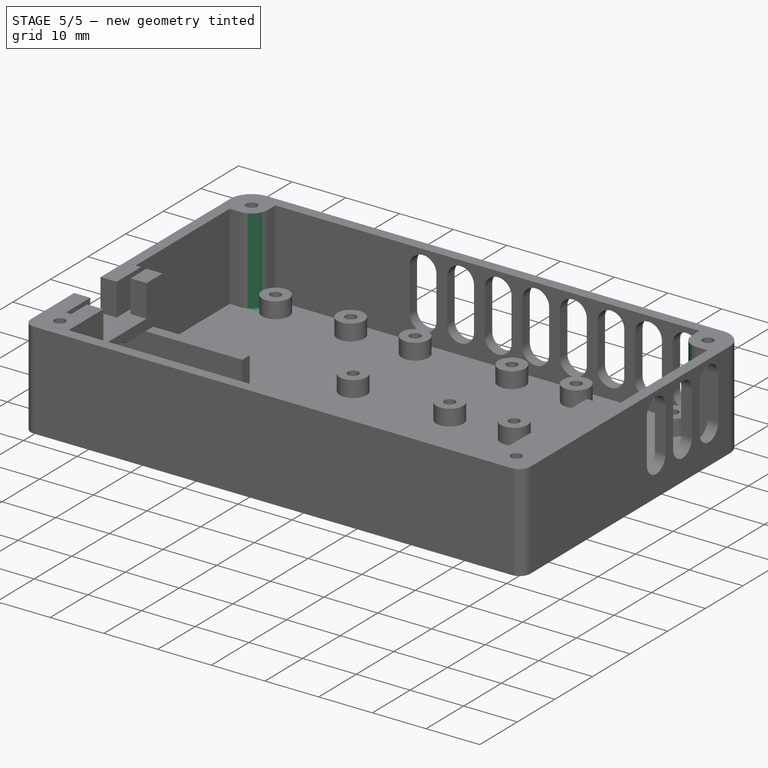
[diagram: stage 5 of 5 — iso view after this stage's code; geometry added in this stage tinted green]
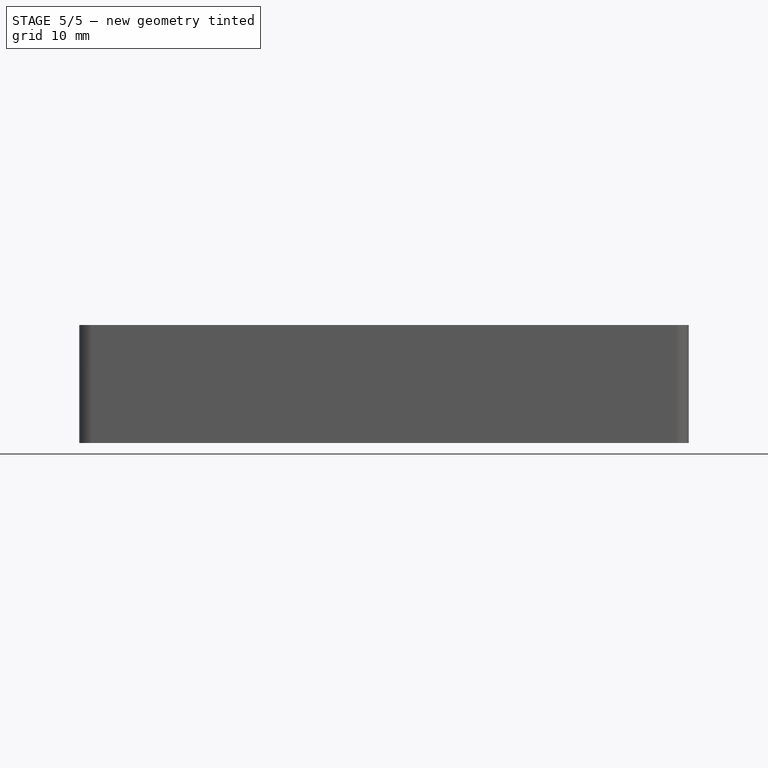
[diagram: stage 5 of 5 — front view after this stage's code; geometry added in this stage tinted green]
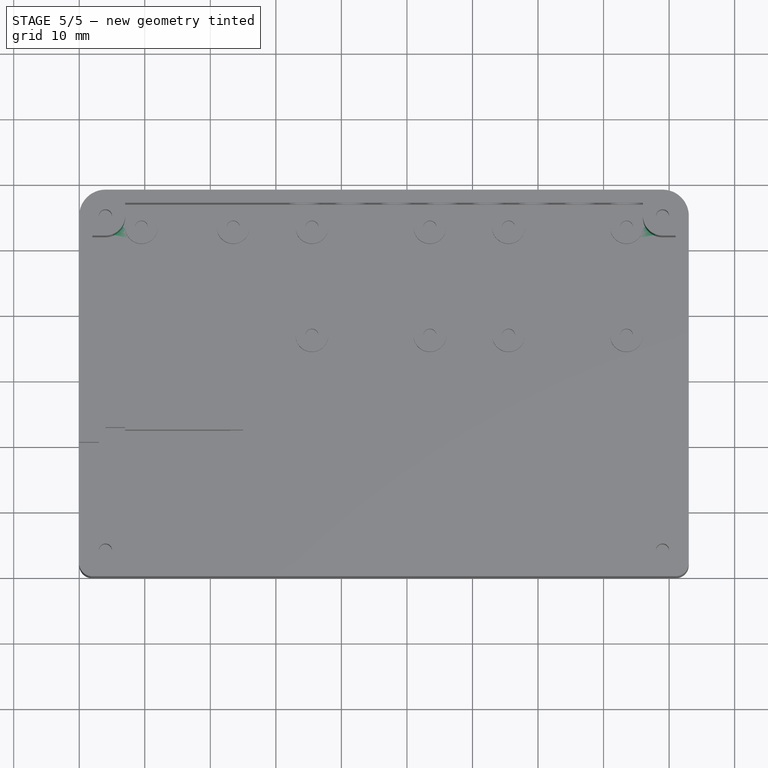
[diagram: stage 5 of 5 — top view after this stage's code; geometry added in this stage tinted green]
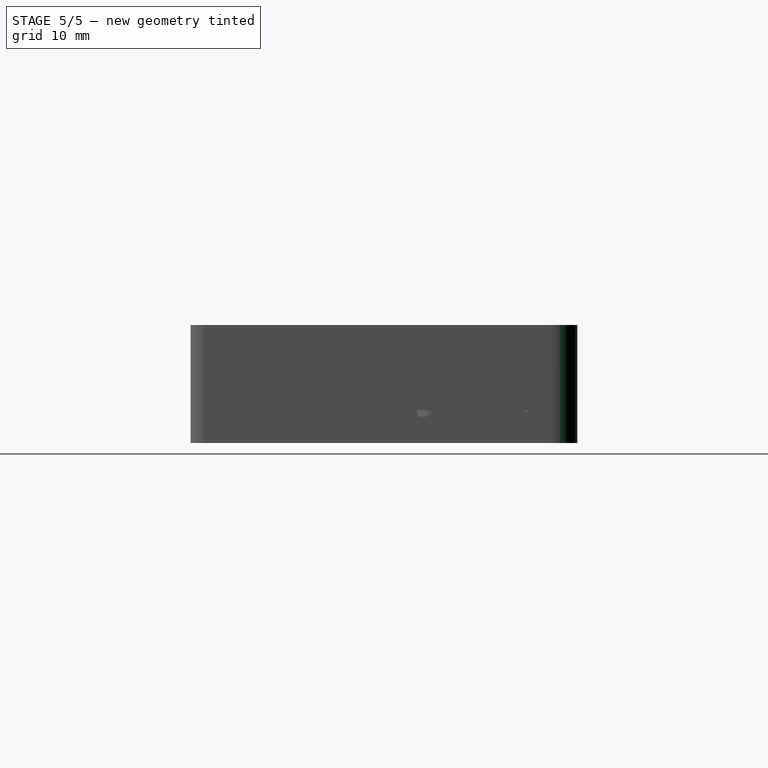
[diagram: stage 5 of 5 — right view after this stage's code; geometry added in this stage tinted green]
FEATURE [PartDesign::Fillet] Fillet001
  Base = -> Fillet [Edge33,Edge49]
  BaseFeature = -> Fillet
  Radius = 4
  Refine = true
  SupportTransform = false
  Suppressed = false
  UseAllEdges = false
FEATURE [PartDesign::Fillet] Fillet002
  Base = -> Fillet001 [Edge122,Edge187]
  BaseFeature = -> Fillet001
  Radius = 3
  Refine = true
  SupportTransform = false
  Suppressed = false
  UseAllEdges = false
FEATURE [PartDesign::Fillet] Fillet003
  Base = -> Fillet002 [Edge275,Edge277,Edge272,Edge271]
  BaseFeature = -> Fillet002
  Radius = 1
  Refine = true
  SupportTransform = false
  Suppressed = false
  UseAllEdges = false
FEATURE [PartDesign::Body] Body
  AllowCompound = false
  Group = -> [Sketch,Pad,Sketch001,Pocket,Sketch002,Pocket001,Sketch003,Pocket002,Sketch004,Pad001,Sketch005,Pad002,Sketch006,Pad003,Sketch007,Pocket003,Sketch008,Pocket004,Sketch009,Pocket005,Sketch010,Pocket006,Sketch011,Pocket007,Fillet,Fillet001,Fillet002,Fillet003]
  Origin = -> Origin
  Tip = -> Fillet003
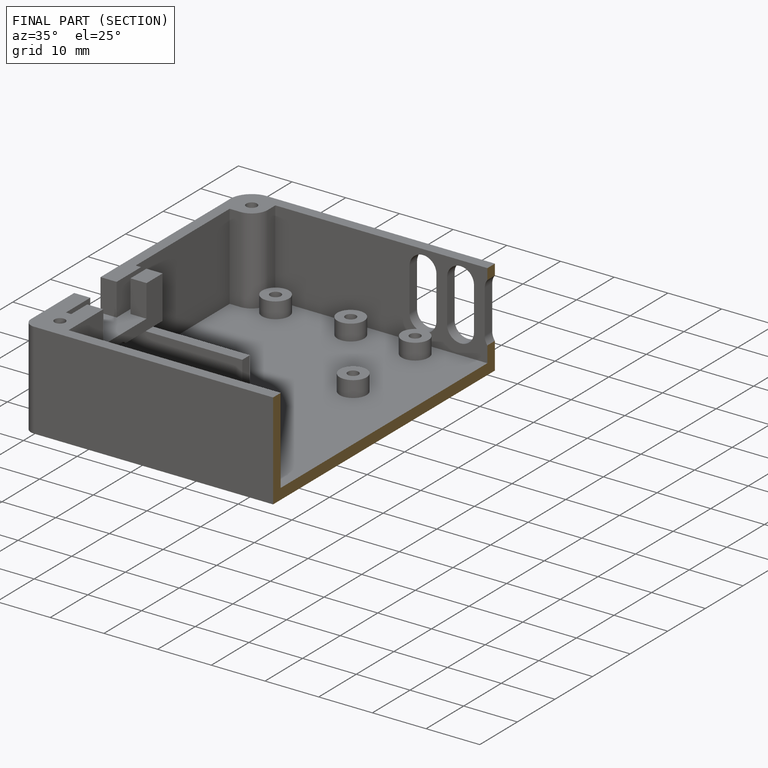
[diagram: finished part — half-section view (interior)]
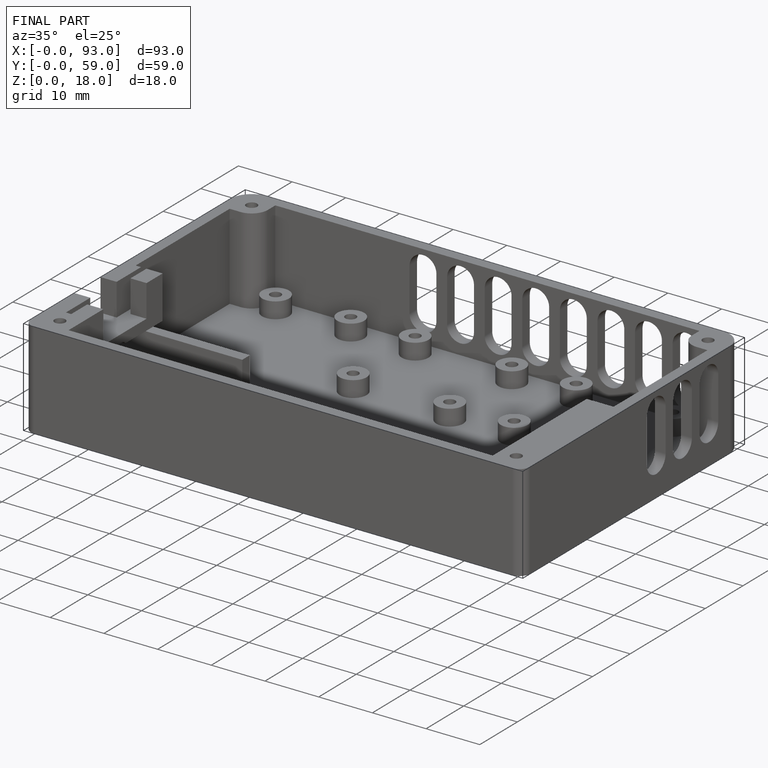
[diagram: finished part — iso view with bounding-box wireframe]
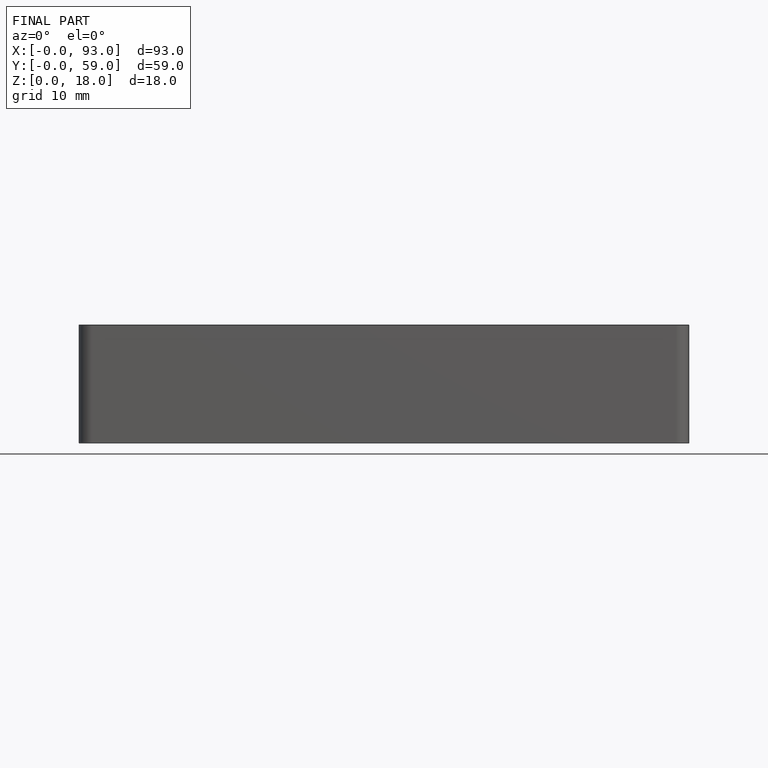
[diagram: finished part — front view with bounding-box wireframe]
